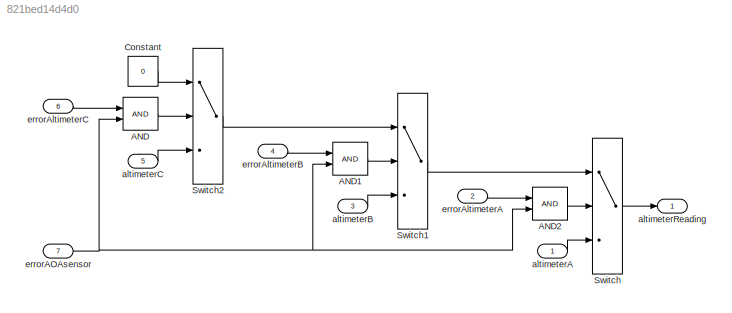
MODEL slx_821bed14d4d0
KIND model
CONFIG AbsTol = auto
CONFIG EnableMultiTasking = off
CONFIG FixedStep = auto
CONFIG MaxStep = auto
CONFIG MinStep = auto
CONFIG RelTol = 1e-3
CONFIG SampleTimeConstraint = Unconstrained
CONFIG Solver = FixedStepAuto
CONFIG SolverName = FixedStepAuto
CONFIG StartTime = 0.0
CONFIG StopTime = 100
BLOCK [Logic] AND
  AllPortsSameDT = off
  OutDataTypeStr = boolean
  Ports = [2, 1]
BLOCK [Logic] AND1
  AllPortsSameDT = off
  OutDataTypeStr = boolean
  Ports = [2, 1]
BLOCK [Logic] AND2
  AllPortsSameDT = off
  OutDataTypeStr = boolean
  Ports = [2, 1]
BLOCK [Constant] Constant
  Value = 0
BLOCK [Switch] Switch
  Criteria = u2 ~= 0
  InputSameDT = off
  SaturateOnIntegerOverflow = off
BLOCK [Switch] Switch1
  Criteria = u2 ~= 0
  InputSameDT = off
  SaturateOnIntegerOverflow = off
BLOCK [Switch] Switch2
  Criteria = u2 ~= 0
  InputSameDT = off
  SaturateOnIntegerOverflow = off
BLOCK [Inport] altimeterA
  IconDisplay = Port number
BLOCK [Inport] altimeterB
  IconDisplay = Port number
  Port = 3
BLOCK [Inport] altimeterC
  IconDisplay = Port number
  Port = 5
BLOCK [Outport] altimeterReading
  IconDisplay = Port number
BLOCK [Inport] errorAOAsensor
  IconDisplay = Port number
  OutDataTypeStr = boolean
  Port = 7
BLOCK [Inport] errorAltimeterA
  IconDisplay = Port number
  OutDataTypeStr = boolean
  Port = 2
BLOCK [Inport] errorAltimeterB
  IconDisplay = Port number
  OutDataTypeStr = boolean
  Port = 4
BLOCK [Inport] errorAltimeterC
  IconDisplay = Port number
  OutDataTypeStr = boolean
  Port = 6
LINE AND1:1 -> Switch1:2
LINE AND2:1 -> Switch:2
LINE AND:1 -> Switch2:2
LINE Constant:1 -> Switch2:1
LINE Switch1:1 -> Switch:1
LINE Switch2:1 -> Switch1:1
LINE Switch:1 -> altimeterReading:1
LINE altimeterA:1 -> Switch:3
LINE altimeterB:1 -> Switch1:3
LINE altimeterC:1 -> Switch2:3
NET errorAOAsensor:1 -> AND1:2, AND2:2, AND:2
LINE errorAltimeterA:1 -> AND2:1
LINE errorAltimeterB:1 -> AND1:1
LINE errorAltimeterC:1 -> AND:1
note: NET lines group one-source signal fan-out (src -> all destinations, sorted); 1:1 wires keep LINE
